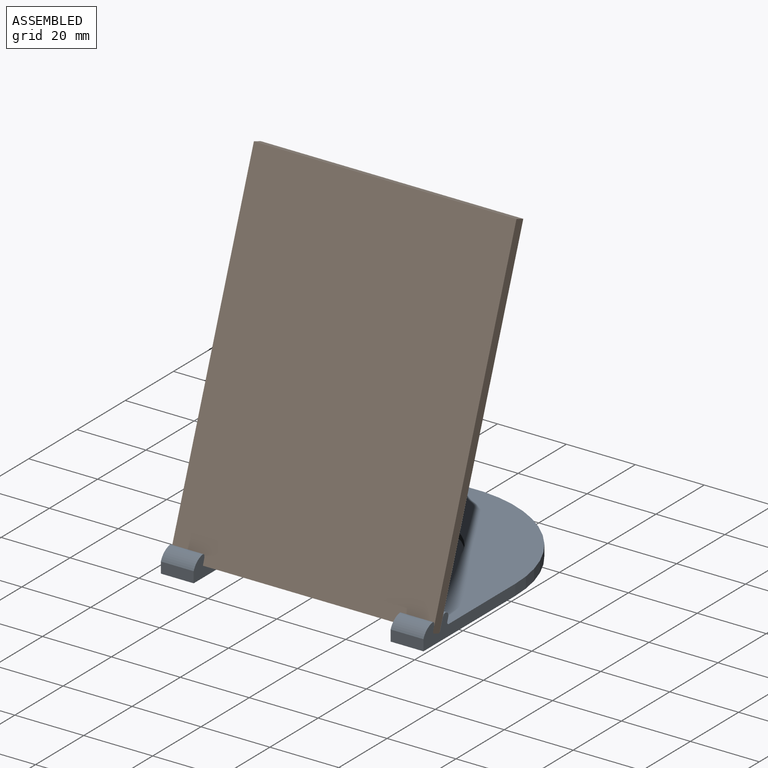
[diagram: assembled view]
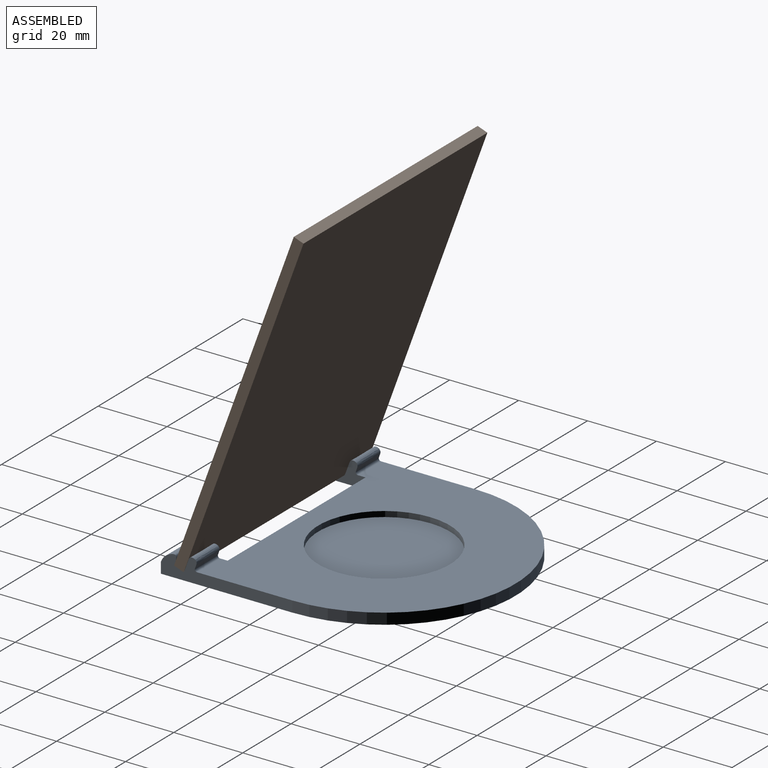
[diagram: assembled view, second angle]
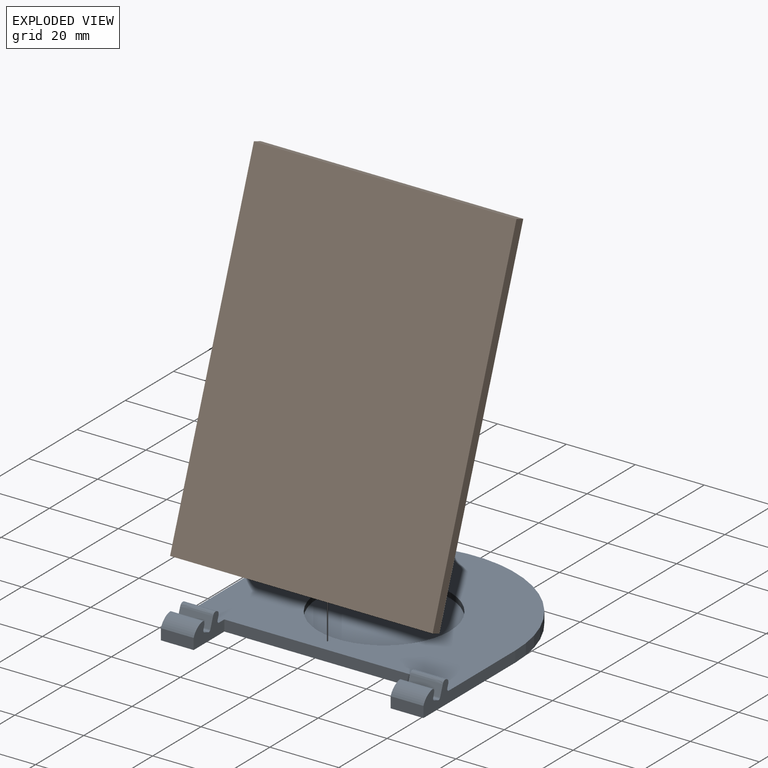
[diagram: exploded view]
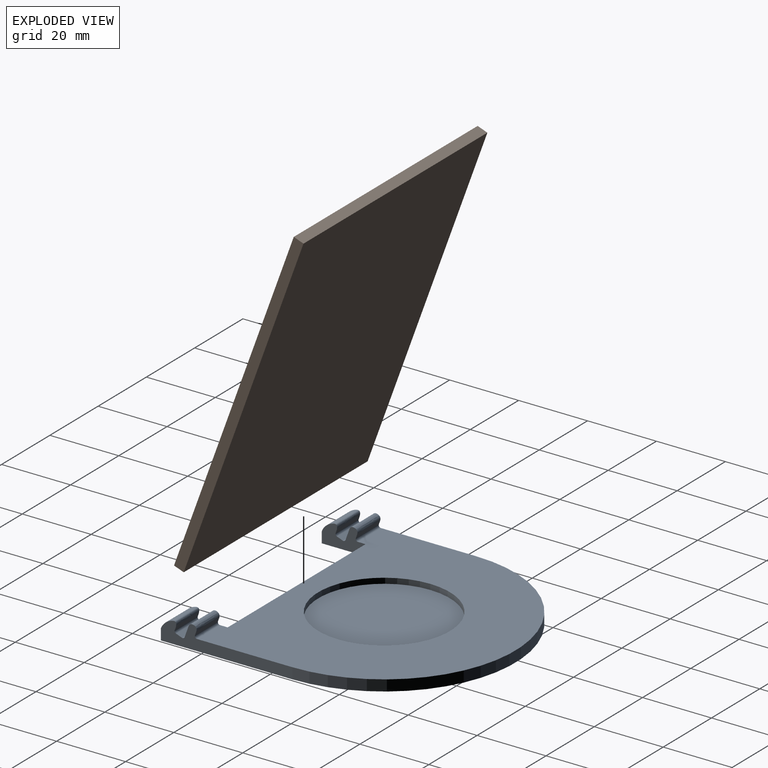
[diagram: exploded view, second angle]
ASSEMBLY  parts=2 mates=3
PART A: 34 faces, bbox 77.5x76.5x7.1 mm
  f0: plane 76.2x65.71mm, normal (0,0,1), area 3110mm2, adj f1,f2,f3,f5,f6,f7,f8,f29
  f1: plane 38.4x7.11mm, normal (1,0,0), area 136.7mm2, adj f0,f2,f9,f10,f11,f12,f13,f14
  f2: cylinder r=38.1mm len=76.2mm, axis (0,0,-1), area 380mm2, adj f0,f1,f3,f10
  f3: plane 38.42x7.12mm, normal (-1,0,0), area 136.8mm2, adj f0,f2,f4,f10,f15,f16,f17,f18
  f4: plane 9.53x3.18mm, normal (0,-1,0), area 30.2mm2, adj f3,f5,f10,f15
  f5: plane 13x7.11mm, normal (1,0,0), area 56.1mm2, adj f0,f4,f6,f10,f15,f16,f17,f18
  f6: plane 57.15x3.18mm, normal (0,-1,0), area 181.5mm2, adj f0,f5,f7,f10
  f7: plane 13.02x7.12mm, normal (-1,0,0), area 55.8mm2, adj f0,f6,f9,f10,f11,f12,f13,f14
  f8: cylinder r=19.11mm len=38.23mm, axis (0,0,-1), area 190.6mm2, adj f0,f33
  f9: plane 9.53x3.18mm, normal (0,-1,0), area 30.2mm2, adj f1,f7,f10,f12
  f10: plane 76.2x76.2mm, normal (0,0,-1), area 4457.6mm2, adj f1,f2,f3,f4,f5,f6,f7,f9
  f11: plane 9.53x0.39mm, normal (0,0.94,-0.34), area 4mm2, adj f1,f7,f24,f32
  f12: cylinder r=4.76mm len=9.53mm, axis (1,0,0), area 34.7mm2, adj f1,f7,f9,f24
  f13: plane 9.53x3.05mm, normal (0,-0.94,0.34), area 30.9mm2, adj f1,f7,f22,f27
  f14: plane 9.53x0.94mm, normal (0,0.94,-0.34), area 9.5mm2, adj f1,f7,f23,f31
  f15: cylinder r=4.76mm len=9.53mm, axis (-1,0,0), area 34.7mm2, adj f3,f4,f5,f21
  f16: plane 9.53x0.39mm, normal (0,0.94,-0.34), area 4mm2, adj f3,f5,f21,f30
  f17: plane 9.53x3.05mm, normal (0,-0.94,0.34), area 30.9mm2, adj f3,f5,f19,f28
  f18: plane 9.53x0.94mm, normal (0,0.94,-0.34), area 9.5mm2, adj f3,f5,f20,f29
  f19: bspline ~10.48x1.63mm, area 18.5mm2, adj f3,f5,f17,f20
  f20: bspline ~10.48x1.63mm, area 19.3mm2, adj f3,f5,f18,f19
  f21: bspline ~10.48x2.14mm, area 36.3mm2, adj f3,f5,f15,f16
  f22: bspline ~10.48x1.63mm, area 18.5mm2, adj f1,f7,f13,f23
  f23: bspline ~10.48x1.63mm, area 19.3mm2, adj f1,f7,f14,f22
  f24: bspline ~10.48x2.14mm, area 36.3mm2, adj f1,f7,f11,f12
  f25: plane 9.53x1.67mm, normal (0,0.34,0.94), area 16.9mm2, adj f1,f7,f27,f32
  f26: plane 9.53x1.67mm, normal (0,0.34,0.94), area 16.9mm2, adj f3,f5,f28,f30
  f27: cylinder r=0.64mm len=9.53mm, axis (-1,0,0), area 9.5mm2, adj f1,f7,f13,f25
  f28: cylinder r=0.64mm len=9.53mm, axis (1,0,0), area 9.5mm2, adj f3,f5,f17,f26
  f29: cylinder r=0.64mm len=9.53mm, axis (1,0,0), area 11.6mm2, adj f0,f3,f5,f18
  f30: cylinder r=0.64mm len=9.53mm, axis (1,0,0), area 9.5mm2, adj f3,f5,f16,f26
  f31: cylinder r=0.64mm len=9.53mm, axis (1,0,0), area 11.6mm2, adj f0,f1,f7,f14
  f32: cylinder r=0.64mm len=9.53mm, axis (1,0,0), area 9.5mm2, adj f1,f7,f11,f25
  f33: plane 38.23x38.23mm, normal (0,0,1), area 1147.7mm2, adj f8
PART B: 6 faces, bbox 76.2x3x101.6 mm
  f0: plane 101.6x3mm, normal (1,0,0), area 304.8mm2, adj f1,f3,f4,f5
  f1: plane 76.2x3mm, normal (0,0,1), area 228.6mm2, adj f0,f2,f4,f5
  f2: plane 101.6x3mm, normal (-1,0,0), area 304.8mm2, adj f1,f3,f4,f5
  f3: plane 76.2x3mm, normal (0,0,-1), area 228.6mm2, adj f0,f2,f4,f5
  f4: plane 101.6x76.2mm, normal (0,-1,0), area 7741.9mm2, adj f0,f1,f2,f3
  f5: plane 101.6x76.2mm, normal (0,1,0), area 7741.9mm2, adj f0,f1,f2,f3
PLACE A t=(5.11,8.6,5.39)mm fixed
PLACE B rot(axis=(-1,0,0),20deg) t=(5.11,-5.49,55.28)mm
MATE planar B.f3 <-> A.f25  axis (0,-0.34,-0.94) through (5.11,-24.28,8.05)mm
MATE planar B.f0 <-> A.f12  axis (1,0,0) through (43.21,-6.9,55.79)mm
MATE planar B.f4 <-> A.f11  axis (0,-0.94,0.34) through (43.21,-25.69,8.57)mm
